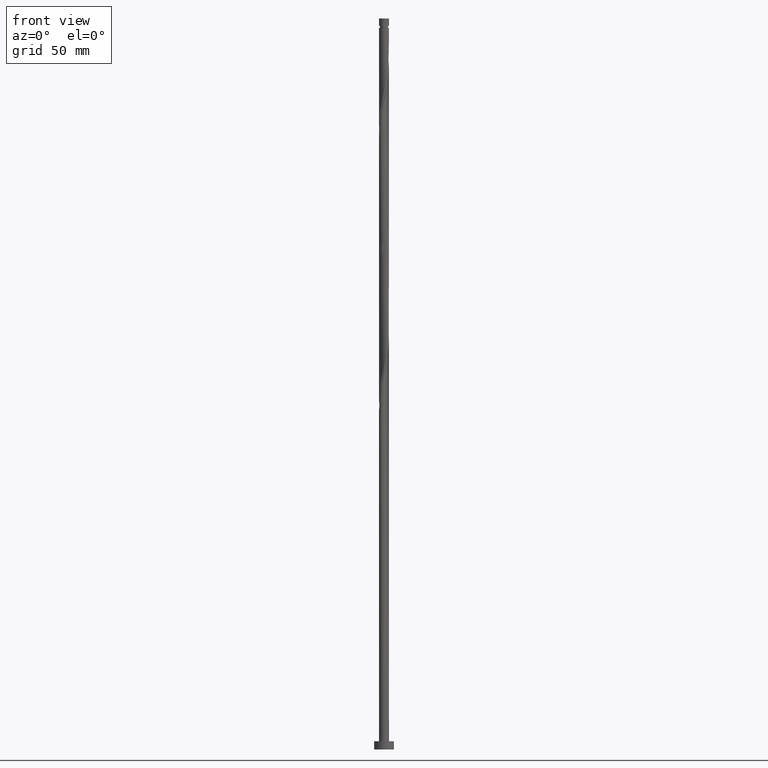
[diagram: clean part render]
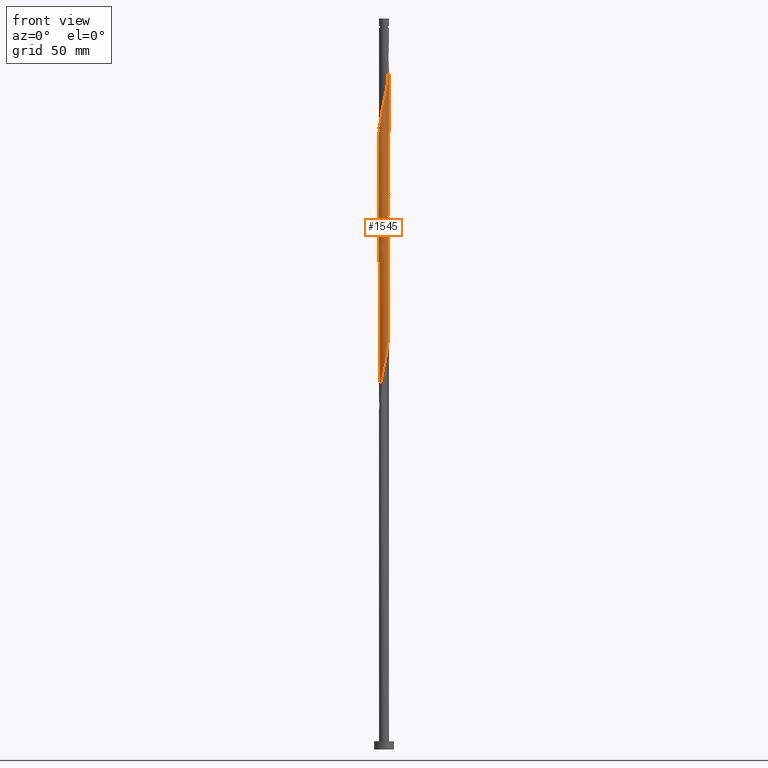
[diagram: same view with one face highlighted and labeled with its STEP entity id]
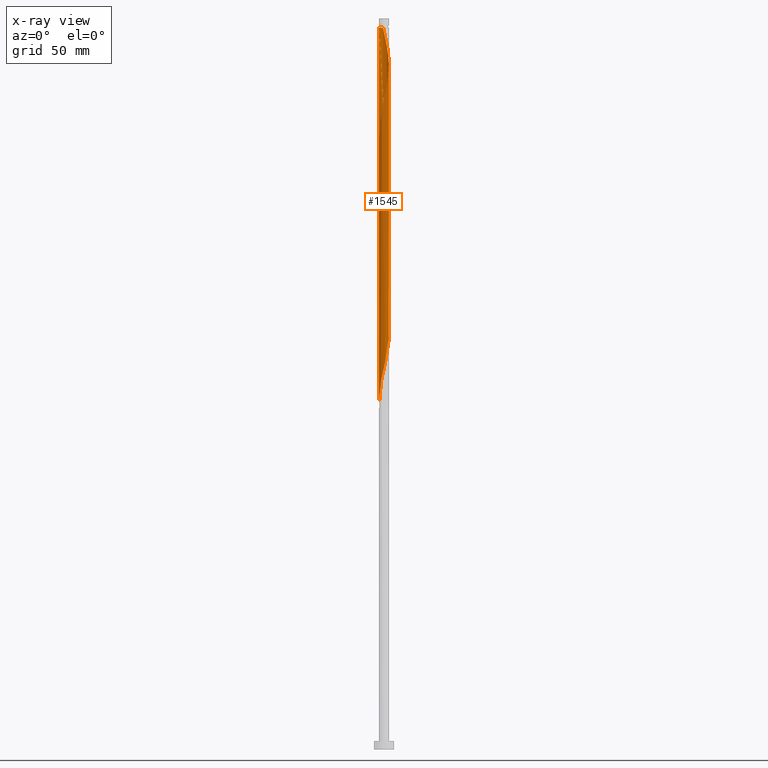
[diagram: x-ray of the same camera — body ghosted, the highlighted face saturated]
A machine part, front view. The second image highlights one B-rep face of the part: STEP entity #1545.
The next image is the same camera in x-ray: the body ghosted, the highlighted face saturated — about 0% of this face is hidden behind the body in this view.
In plain terms, the highlighted cylindrical surface (bore or boss wall) has radius 3 mm, axis along (-0, -0, -1).
Its self-contained STEP definition (entity closure, byte-faithful):
#7 = CARTESIAN_POINT ( 'NONE',  ( 0.01195587277277112247, 2.999976176089777624, 274.2562620546291328 ) ) ;
#10 = VERTEX_POINT ( 'NONE', #113 ) ;
#12 = CARTESIAN_POINT ( 'NONE',  ( -2.501031355072560913, -1.656756518304338899, 219.5687620546290475 ) ) ;
#13 = CARTESIAN_POINT ( 'NONE',  ( -3.000000000000000444, 0.000000000000000000, 444.0000000000000000 ) ) ;
#29 = CARTESIAN_POINT ( 'NONE',  ( 3.001153726777527897, 0.2835159908483695368, 254.7250120546290475 ) ) ;
#33 = CARTESIAN_POINT ( 'NONE',  ( -1.921660071883963372, -2.322612231291373952, 223.4750120546290475 ) ) ;
#38 = CARTESIAN_POINT ( 'NONE',  ( -2.322612231291378837, -1.921660071883965815, 382.3291787212958752 ) ) ;
#49 = CARTESIAN_POINT ( 'NONE',  ( -1.656756518304341341, -2.501031355072564910, 386.2354287212957047 ) ) ;
#51 =( BOUNDED_CURVE ( )  B_SPLINE_CURVE ( 2, ( #276, #1972, #1037, #604, #1212, #1813, #1165, #415, #120, #1620, #263, #867, #1338, #1470, #110, #436, #722, #879, #1329, #1645, #1937, #890, #1223, #1531, #183, #637, #1246, #1903, #836, #671, #84, #1921, #1771, #385, #1750, #818, #1298, #1126, #404, #1009, #1288, #582, #296, #805, #659, #1840, #1065, #501, #772, #1085, #7, #1405, #473, #333, #1537, #646, #1857, #352, #1075, #1847, #1686, #1558, #181, #1528, #789, #29, #489, #1675, #1134, #1439, #1650, #216, #390, #994, #1323, #1503, #1767, #156, #1169, #1303, #248, #1777, #268, #903, #144, #1870, #1417, #1523, #943, #33, #1550, #192, #12, #799, #1690, #1408, #1230, #647, #1376 ),
 .UNSPECIFIED., .F., .T. ) 
 B_SPLINE_CURVE_WITH_KNOTS ( ( 3, 2, 2, 2, 2, 2, 2, 2, 2, 2, 2, 2, 2, 2, 2, 2, 2, 2, 2, 2, 2, 2, 2, 2, 2, 2, 2, 2, 2, 2, 2, 2, 2, 2, 2, 2, 2, 2, 2, 2, 2, 2, 2, 2, 2, 2, 2, 2, 2, 3 ),
 ( 0.5545286902180873723, 0.5546875000000000000, 0.5625000000000000000, 0.5703125000000000000, 0.5781250000000000000, 0.5859375000000000000, 0.5937500000000000000, 0.6015625000000000000, 0.6093750000000000000, 0.6171875000000000000, 0.6250000000000000000, 0.6328125000000000000, 0.6406250000000000000, 0.6484375000000000000, 0.6562500000000000000, 0.6640625000000000000, 0.6718750000000000000, 0.6796875000000000000, 0.6875000000000000000, 0.6953125000000000000, 0.7031250000000000000, 0.7109375000000000000, 0.7187500000000000000, 0.7265625000000000000, 0.7343750000000000000, 0.7421875000000000000, 0.7500000000000000000, 0.7578125000000000000, 0.7656250000000000000, 0.7734375000000000000, 0.7812500000000000000, 0.7890625000000000000, 0.7968750000000000000, 0.8046875000000000000, 0.8125000000000000000, 0.8203125000000000000, 0.8281250000000000000, 0.8359375000000000000, 0.8437500000000000000, 0.8515625000000000000, 0.8593750000000000000, 0.8671875000000000000, 0.8750000000000000000, 0.8828125000000000000, 0.8906250000000000000, 0.8984375000000000000, 0.9062500000000000000, 0.9140625000000000000, 0.9218750000000000000, 0.9295286902180872612 ),
 .UNSPECIFIED. ) 
 CURVE ( )  GEOMETRIC_REPRESENTATION_ITEM ( )  RATIONAL_B_SPLINE_CURVE ( ( 0.9089165573359686556, 0.9090019243628733037, 0.9090909090909650159, 0.9047133878838710119, 0.9090909090909650159, 0.9047133878838710119, 0.9090909090909650159, 0.9047133878838710119, 0.9090909090909650159, 0.9047133878838710119, 0.9090909090909650159, 0.9047133878838710119, 0.9090909090909650159, 0.9047133878838710119, 0.9090909090909650159, 0.9047133878838710119, 0.9090909090909650159, 0.9047133878838710119, 0.9090909090909650159, 0.9047133878838710119, 0.9090909090909650159, 0.9047133878838710119, 0.9090909090909650159, 0.9047133878838710119, 0.9090909090909650159, 0.9047133878838710119, 0.9090909090909650159, 0.9047133878838710119, 0.9090909090909650159, 0.9047133878838710119, 0.9090909090909650159, 0.9047133878838710119, 0.9090909090909650159, 0.9047133878838710119, 0.9090909090909650159, 0.9047133878838710119, 0.9090909090909650159, 0.9047133878838710119, 0.9090909090909650159, 0.9047133878838710119, 0.9090909090909650159, 0.9047133878838710119, 0.9090909090909650159, 0.9047133878838710119, 0.9090909090909650159, 0.9047133878838710119, 0.9090909090909650159, 0.9047133878838710119, 0.9090909090909650159, 0.9047133878838710119, 0.9090909090909650159, 0.9047133878838710119, 0.9090909090909650159, 0.9047133878838710119, 0.9090909090909650159, 0.9047133878838710119, 0.9090909090909650159, 0.9047133878838710119, 0.9090909090909650159, 0.9047133878838710119, 0.9090909090909650159, 0.9047133878838710119, 0.9090909090909650159, 0.9047133878838710119, 0.9090909090909650159, 0.9047133878838710119, 0.9090909090909650159, 0.9047133878838710119, 0.9090909090909650159, 0.9047133878838710119, 0.9090909090909650159, 0.9047133878838710119, 0.9090909090909650159, 0.9047133878838710119, 0.9090909090909650159, 0.9047133878838710119, 0.9090909090909650159, 0.9047133878838710119, 0.9090909090909650159, 0.9047133878838710119, 0.9090909090909650159, 0.9047133878838710119, 0.9090909090909650159, 0.9047133878838710119, 0.9090909090909650159, 0.9047133878838710119, 0.9090909090909650159, 0.9047133878838710119, 0.9090909090909650159, 0.9047133878838710119, 0.9090909090909650159, 0.9047133878838710119, 0.9090909090909650159, 0.9047133878838710119, 0.9090909090909650159, 0.9047133878838710119, 0.9090909090909650159, 0.9048023726119627241, 0.9089165573359684336 ) ) 
 REPRESENTATION_ITEM ( '' )  );
#53 = CARTESIAN_POINT ( 'NONE',  ( 3.000000000000000444, 1.595438430508583589E-15, 336.8089590326259213 ) ) ;
#76 = CARTESIAN_POINT ( 'NONE',  ( -0.3074277363939128538, 2.998798625402032236, 437.0166787212958184 ) ) ;
#84 = CARTESIAN_POINT ( 'NONE',  ( -2.776191901540425722, -1.136995393931460097, 300.2979287212957615 ) ) ;
#85 = CARTESIAN_POINT ( 'NONE',  ( 2.129757576223800797, 2.112849418798539602, 347.1729287212957047 ) ) ;
#86 = CARTESIAN_POINT ( 'NONE',  ( -3.000000000000000444, 0.000000000000000000, 444.0000000000000000 ) ) ;
#110 = CARTESIAN_POINT ( 'NONE',  ( 1.136995393931459875, -2.776191901540426610, 321.1312620546290191 ) ) ;
#113 = CARTESIAN_POINT ( 'NONE',  ( 3.000000000000000444, 1.595438430508583392E-15, 336.8089590326258644 ) ) ;
#120 = CARTESIAN_POINT ( 'NONE',  ( 2.487746701027917506, -1.676638408102568922, 328.9437620546291328 ) ) ;
#128 = CARTESIAN_POINT ( 'NONE',  ( -3.000000000000000444, -1.302817129585864256E-15, 211.8089590326259213 ) ) ;
#129 = CARTESIAN_POINT ( 'NONE',  ( 2.664207629581488046, -1.410426430302975875, 408.3708453879624471 ) ) ;
#139 = CARTESIAN_POINT ( 'NONE',  ( 3.000000000000000444, 3.673940397442060361E-16, 444.0000000000000000 ) ) ;
#144 = CARTESIAN_POINT ( 'NONE',  ( -0.5969924622639758427, -2.939999999999999503, 229.9854287212957331 ) ) ;
#147 = EDGE_CURVE ( 'NONE', #753, #1179, #318, .T. ) ;
#148 = ORIENTED_EDGE ( 'NONE', *, *, #1356, .F. ) ;
#156 = CARTESIAN_POINT ( 'NONE',  ( 1.410426430302971657, -2.664207629581484937, 239.1000120546291328 ) ) ;
#178 = AXIS2_PLACEMENT_3D ( 'NONE', #1744, #1724, #1914 ) ;
#181 = CARTESIAN_POINT ( 'NONE',  ( 2.776191901540426166, 1.136995393931459652, 258.6312620546290759 ) ) ;
#183 = CARTESIAN_POINT ( 'NONE',  ( -1.676638408102567812, -2.487746701027919283, 308.1104287212958184 ) ) ;
#188 = ORIENTED_EDGE ( 'NONE', *, *, #147, .T. ) ;
#192 = CARTESIAN_POINT ( 'NONE',  ( -2.337855080563638221, -1.903086606305705697, 220.8708453879624471 ) ) ;
#211 = CARTESIAN_POINT ( 'NONE',  ( 0.5969924622639763978, 2.939999999999999503, 354.9854287212957615 ) ) ;
#216 = CARTESIAN_POINT ( 'NONE',  ( 2.652881170764462393, -1.431616744321172474, 246.9125120546290759 ) ) ;
#225 = CARTESIAN_POINT ( 'NONE',  ( -2.940000000000004388, -0.5969924622639756207, 375.8187620546290759 ) ) ;
#229 = CARTESIAN_POINT ( 'NONE',  ( 2.322612231291379281, 1.921660071883965593, 423.9958453879623903 ) ) ;
#231 = CARTESIAN_POINT ( 'NONE',  ( 0.01195587277277112247, 2.999976176089777624, 357.5895953879624471 ) ) ;
#240 = CARTESIAN_POINT ( 'NONE',  ( 3.001153726777532782, -0.2835159908483714797, 413.5791787212958752 ) ) ;
#243 = CARTESIAN_POINT ( 'NONE',  ( -2.939999999999999503, 0.5969924622639757317, 375.8187620546290191 ) ) ;
#248 = CARTESIAN_POINT ( 'NONE',  ( 0.5735401742041600359, -2.944664950138448756, 235.1937620546290475 ) ) ;
#259 = CARTESIAN_POINT ( 'NONE',  ( 1.410426430302975875, 2.664207629581487602, 429.2041787212957615 ) ) ;
#263 = CARTESIAN_POINT ( 'NONE',  ( 2.112849418798539602, -2.129757576223800797, 326.3395953879625040 ) ) ;
#268 = CARTESIAN_POINT ( 'NONE',  ( -0.01195587277277070440, -2.999976176089778068, 232.5895953879623903 ) ) ;
#276 = CARTESIAN_POINT ( 'NONE',  ( 3.000000000000000444, 1.595438430508583589E-15, 336.8089590326259213 ) ) ;
#296 = CARTESIAN_POINT ( 'NONE',  ( -2.112849418798539602, 2.129757576223800797, 284.6729287212957615 ) ) ;
#302 = ORIENTED_EDGE ( 'NONE', *, *, #1332, .F. ) ;
#318 = LINE ( 'NONE', #86, #461 ) ;
#330 = CARTESIAN_POINT ( 'NONE',  ( -0.5969924622640550016, 2.940000000000798863, 438.3187620546291896 ) ) ;
#333 = CARTESIAN_POINT ( 'NONE',  ( 0.8865571881340382765, 2.881201374597972542, 270.3500120546290759 ) ) ;
#338 = EDGE_CURVE ( 'NONE', #10, #1179, #51, .T. ) ;
#352 = CARTESIAN_POINT ( 'NONE',  ( 1.921660071883963594, 2.322612231291373952, 265.1416787212958184 ) ) ;
#355 = CARTESIAN_POINT ( 'NONE',  ( 2.776191901540426166, 1.136995393931459652, 341.9645953879625040 ) ) ;
#358 = DIRECTION ( 'NONE',  ( -1.000000000000000000, 0.000000000000000000, 0.000000000000000000 ) ) ;
#376 = CARTESIAN_POINT ( 'NONE',  ( 2.664207629581484049, 1.410426430302972101, 343.2666787212958184 ) ) ;
#385 = CARTESIAN_POINT ( 'NONE',  ( -3.001153726777528341, -0.2835159908483698699, 296.3916787212957615 ) ) ;
#390 = CARTESIAN_POINT ( 'NONE',  ( 2.487746701027917506, -1.676638408102568922, 245.6104287212957331 ) ) ;
#399 = DIRECTION ( 'NONE',  ( -0.000000000000000000, -0.000000000000000000, -1.000000000000000000 ) ) ;
#400 = EDGE_CURVE ( 'NONE', #1711, #815, #1663, .T. ) ;
#404 = CARTESIAN_POINT ( 'NONE',  ( -2.767041272681216579, 1.159086966227605764, 289.8812620546290759 ) ) ;
#415 = CARTESIAN_POINT ( 'NONE',  ( 2.652881170764462393, -1.431616744321172474, 330.2458453879625608 ) ) ;
#431 = CARTESIAN_POINT ( 'NONE',  ( 2.487746701027922391, 1.676638408102570477, 422.6937620546290191 ) ) ;
#436 = CARTESIAN_POINT ( 'NONE',  ( 0.8635643575599500910, -2.888176173499368282, 319.8291787212958752 ) ) ;
#444 = CARTESIAN_POINT ( 'NONE',  ( 2.112849418798544932, 2.129757576223801685, 425.2979287212957615 ) ) ;
#461 = VECTOR ( 'NONE', #553, 1000.000000000000000 ) ;
#473 = CARTESIAN_POINT ( 'NONE',  ( 0.5969924622639763978, 2.939999999999999503, 271.6520953879624471 ) ) ;
#489 = CARTESIAN_POINT ( 'NONE',  ( 2.999976176089777624, -0.01195587277277091430, 253.4229287212957331 ) ) ;
#501 = CARTESIAN_POINT ( 'NONE',  ( -0.8635643575599500910, 2.888176173499368282, 278.1625120546290759 ) ) ;
#513 = CARTESIAN_POINT ( 'NONE',  ( 2.337855080563638666, 1.903086606305703699, 345.8708453879625040 ) ) ;
#518 = EDGE_CURVE ( 'NONE', #753, #815, #1818, .T. ) ;
#519 = ORIENTED_EDGE ( 'NONE', *, *, #1579, .F. ) ;
#522 = CARTESIAN_POINT ( 'NONE',  ( -1.903086606305705031, 2.337855080563638221, 366.7041787212957615 ) ) ;
#546 = CARTESIAN_POINT ( 'NONE',  ( -3.000000000000004441, -2.013868252528636088E-15, 373.1618984099654313 ) ) ;
#550 = CARTESIAN_POINT ( 'NONE',  ( 2.501031355072564910, -1.656756518304341785, 407.0687620546290759 ) ) ;
#552 = CARTESIAN_POINT ( 'NONE',  ( -0.2835159908483703139, 3.001153726777528341, 358.8916787212957047 ) ) ;
#553 = DIRECTION ( 'NONE',  ( -0.000000000000000000, -0.000000000000000000, -1.000000000000000000 ) ) ;
#582 = CARTESIAN_POINT ( 'NONE',  ( -2.322612231291373952, 1.921660071883963372, 285.9750120546291328 ) ) ;
#593 = CARTESIAN_POINT ( 'NONE',  ( -3.000000000000000444, -1.302817129585864256E-15, 378.4756256992924932 ) ) ;
#594 = VECTOR ( 'NONE', #916, 1000.000000000000000 ) ;
#604 = CARTESIAN_POINT ( 'NONE',  ( 2.998798625402027351, -0.3074277363939140750, 335.4541787212957615 ) ) ;
#612 = ORIENTED_EDGE ( 'NONE', *, *, #518, .F. ) ;
#618 = CARTESIAN_POINT ( 'NONE',  ( -0.5969924622640550016, 2.940000000000798863, 438.3187620546291896 ) ) ;
#637 = CARTESIAN_POINT ( 'NONE',  ( -1.921660071883963372, -2.322612231291373952, 306.8083453879625608 ) ) ;
#646 = CARTESIAN_POINT ( 'NONE',  ( 1.431616744321172696, 2.652881170764462393, 267.7458453879625040 ) ) ;
#647 = CARTESIAN_POINT ( 'NONE',  ( -3.000000000000002665, -0.2894394447869404474, 213.0849391380419320 ) ) ;
#649 = CARTESIAN_POINT ( 'NONE',  ( -2.112849418798544487, -2.129757576223802129, 383.6312620546290191 ) ) ;
#659 = CARTESIAN_POINT ( 'NONE',  ( -1.656756518304338899, 2.501031355072560913, 282.0687620546291328 ) ) ;
#671 = CARTESIAN_POINT ( 'NONE',  ( -2.664207629581484937, -1.410426430302971657, 301.6000120546290191 ) ) ;
#692 = CARTESIAN_POINT ( 'NONE',  ( 2.940000000000004388, 0.5969924622639752876, 417.4854287212956478 ) ) ;
#701 = FACE_OUTER_BOUND ( 'NONE', #1639, .T. ) ;
#713 = VERTEX_POINT ( 'NONE', #593 ) ;
#716 = CARTESIAN_POINT ( 'NONE',  ( 0.2835159908483717017, 3.001153726777532782, 434.4125120546290759 ) ) ;
#722 = CARTESIAN_POINT ( 'NONE',  ( 0.5735401742041600359, -2.944664950138448756, 318.5270953879624471 ) ) ;
#739 = ORIENTED_EDGE ( 'NONE', *, *, #400, .T. ) ;
#753 = VERTEX_POINT ( 'NONE', #977 ) ;
#772 = CARTESIAN_POINT ( 'NONE',  ( -0.5735401742041602580, 2.944664950138447868, 276.8604287212957615 ) ) ;
#789 = CARTESIAN_POINT ( 'NONE',  ( 2.944664950138447423, 0.5735401742041612572, 256.0270953879625040 ) ) ;
#799 = CARTESIAN_POINT ( 'NONE',  ( -2.664207629581484937, -1.410426430302971657, 218.2666787212957615 ) ) ;
#805 = CARTESIAN_POINT ( 'NONE',  ( -1.903086606305705031, 2.337855080563638221, 283.3708453879625608 ) ) ;
#809 = CARTESIAN_POINT ( 'NONE',  ( 2.888176173499367394, 0.8635643575599499799, 340.6625120546290759 ) ) ;
#815 = VERTEX_POINT ( 'NONE', #330 ) ;
#818 = CARTESIAN_POINT ( 'NONE',  ( -2.998798625402028240, 0.3074277363939125207, 293.7875120546290191 ) ) ;
#819 = CARTESIAN_POINT ( 'NONE',  ( 1.159086966227606430, 2.767041272681216579, 352.3812620546290759 ) ) ;
#828 = CARTESIAN_POINT ( 'NONE',  ( -0.8635643575599500910, 2.888176173499368282, 361.4958453879624471 ) ) ;
#836 = CARTESIAN_POINT ( 'NONE',  ( -2.501031355072560913, -1.656756518304338899, 302.9020953879625040 ) ) ;
#837 = CARTESIAN_POINT ( 'NONE',  ( 0.3074277363939126317, 2.998798625402028240, 356.2875120546291896 ) ) ;
#849 = CARTESIAN_POINT ( 'NONE',  ( -2.767041272681216579, 1.159086966227605764, 373.2145953879624471 ) ) ;
#867 = CARTESIAN_POINT ( 'NONE',  ( 1.903086606305703921, -2.337855080563638666, 325.0375120546290759 ) ) ;
#870 = ORIENTED_EDGE ( 'NONE', *, *, #338, .F. ) ;
#879 = CARTESIAN_POINT ( 'NONE',  ( 0.2835159908483697033, -3.001153726777528341, 317.2250120546291328 ) ) ;
#886 = CARTESIAN_POINT ( 'NONE',  ( 2.129757576223802129, -2.112849418798544487, 404.4645953879623335 ) ) ;
#889 = CARTESIAN_POINT ( 'NONE',  ( -2.487746701027922391, -1.676638408102569811, 381.0270953879623335 ) ) ;
#890 = CARTESIAN_POINT ( 'NONE',  ( -0.8865571881340389426, -2.881201374597972098, 312.0166787212958184 ) ) ;
#898 = DIRECTION ( 'NONE',  ( -0.000000000000000000, -0.000000000000000000, -1.000000000000000000 ) ) ;
#900 = CARTESIAN_POINT ( 'NONE',  ( 1.159086966227606430, -2.767041272681221020, 399.2562620546290191 ) ) ;
#903 = CARTESIAN_POINT ( 'NONE',  ( -0.3074277363939127428, -2.998798625402028240, 231.2875120546290759 ) ) ;
#916 = DIRECTION ( 'NONE',  ( -0.000000000000000000, -0.000000000000000000, -1.000000000000000000 ) ) ;
#943 = CARTESIAN_POINT ( 'NONE',  ( -1.676638408102567812, -2.487746701027919283, 224.7770953879623903 ) ) ;
#960 = CARTESIAN_POINT ( 'NONE',  ( 2.944664950138447423, 0.5735401742041612572, 339.3604287212958184 ) ) ;
#977 = CARTESIAN_POINT ( 'NONE',  ( -3.000000000000004441, -2.013868252528636088E-15, 373.1618984099654313 ) ) ;
#979 = CARTESIAN_POINT ( 'NONE',  ( -3.000000000000000444, -1.302817129585864256E-15, 378.4756256992924932 ) ) ;
#988 = CARTESIAN_POINT ( 'NONE',  ( -2.881201374597972098, 0.8865571881340387206, 374.5166787212958752 ) ) ;
#994 = CARTESIAN_POINT ( 'NONE',  ( 2.322612231291373952, -1.921660071883963372, 244.3083453879624187 ) ) ;
#998 = CARTESIAN_POINT ( 'NONE',  ( 2.944664950138450976, -0.5735401742041631445, 412.2770953879623903 ) ) ;
#1000 = CARTESIAN_POINT ( 'NONE',  ( -2.112849418798539602, 2.129757576223800797, 368.0062620546291328 ) ) ;
#1006 = CARTESIAN_POINT ( 'NONE',  ( 0.8635643575599528665, 2.888176173499372723, 431.8083453879623335 ) ) ;
#1009 = CARTESIAN_POINT ( 'NONE',  ( -2.652881170764462393, 1.431616744321172252, 288.5791787212957615 ) ) ;
#1017 = CARTESIAN_POINT ( 'NONE',  ( -2.999999999999959144, 0.000000000000000000, 438.3187620546290759 ) ) ;
#1037 = CARTESIAN_POINT ( 'NONE',  ( 2.999976176089777624, -0.01195587277277091430, 336.7562620546290759 ) ) ;
#1045 = CARTESIAN_POINT ( 'NONE',  ( 0.5969924622639755096, -2.940000000000004388, 396.6520953879624471 ) ) ;
#1065 = CARTESIAN_POINT ( 'NONE',  ( -1.136995393931461207, 2.776191901540425722, 279.4645953879625040 ) ) ;
#1075 = CARTESIAN_POINT ( 'NONE',  ( 2.129757576223800797, 2.112849418798539602, 263.8395953879624471 ) ) ;
#1077 = CARTESIAN_POINT ( 'NONE',  ( -1.136995393931462983, -2.776191901540429718, 388.8395953879623903 ) ) ;
#1085 = CARTESIAN_POINT ( 'NONE',  ( -0.2835159908483703139, 3.001153726777528341, 275.5583453879625040 ) ) ;
#1086 = CARTESIAN_POINT ( 'NONE',  ( 0.000000000000000000, 0.000000000000000000, 438.3187620546290759 ) ) ;
#1119 = CYLINDRICAL_SURFACE ( 'NONE', #178, 3.000000000000000444 ) ;
#1126 = CARTESIAN_POINT ( 'NONE',  ( -2.881201374597972098, 0.8865571881340387206, 291.1833453879625040 ) ) ;
#1127 = CARTESIAN_POINT ( 'NONE',  ( -1.410426430302972101, 2.664207629581484937, 364.1000120546291896 ) ) ;
#1134 = CARTESIAN_POINT ( 'NONE',  ( 2.939999999999999503, -0.5969924622639760647, 250.8187620546290475 ) ) ;
#1141 = CARTESIAN_POINT ( 'NONE',  ( -2.881201374597976095, -0.8865571881340394977, 377.1208453879623903 ) ) ;
#1153 = CARTESIAN_POINT ( 'NONE',  ( 1.656756518304341785, 2.501031355072564022, 427.9020953879623903 ) ) ;
#1154 = CARTESIAN_POINT ( 'NONE',  ( 2.776191901540429274, -1.136995393931462983, 409.6729287212957615 ) ) ;
#1162 = CARTESIAN_POINT ( 'NONE',  ( 2.881201374597976539, 0.8865571881340380545, 418.7875120546290759 ) ) ;
#1165 = CARTESIAN_POINT ( 'NONE',  ( 2.767041272681216579, -1.159086966227606208, 331.5479287212957615 ) ) ;
#1169 = CARTESIAN_POINT ( 'NONE',  ( 1.136995393931459875, -2.776191901540426610, 237.7979287212957615 ) ) ;
#1179 = VERTEX_POINT ( 'NONE', #128 ) ;
#1186 = CARTESIAN_POINT ( 'NONE',  ( 2.767041272681221464, 1.159086966227606430, 420.0895953879623335 ) ) ;
#1208 = CARTESIAN_POINT ( 'NONE',  ( 1.431616744321172918, -2.652881170764466834, 400.5583453879623903 ) ) ;
#1212 = CARTESIAN_POINT ( 'NONE',  ( 2.939999999999999503, -0.5969924622639760647, 334.1520953879625040 ) ) ;
#1223 = CARTESIAN_POINT ( 'NONE',  ( -1.159086966227606208, -2.767041272681216579, 310.7145953879624471 ) ) ;
#1229 = VECTOR ( 'NONE', #898, 1000.000000000000000 ) ;
#1230 = CARTESIAN_POINT ( 'NONE',  ( -2.944664950138447868, -0.5735401742041601469, 214.3604287212957615 ) ) ;
#1241 = LINE ( 'NONE', #13, #594 ) ;
#1246 = CARTESIAN_POINT ( 'NONE',  ( -2.129757576223800797, -2.112849418798540491, 305.5062620546290759 ) ) ;
#1261 = CARTESIAN_POINT ( 'NONE',  ( -1.903086606305709028, -2.337855080563639998, 384.9333453879623903 ) ) ;
#1267 =( BOUNDED_CURVE ( )  B_SPLINE_CURVE ( 2, ( #979, #1418, #1580, #1600, #243, #988, #849, #1881, #1591, #1450, #1000, #522, #1904, #1127, #1893, #828, #1570, #552, #231, #837, #211, #1272, #819, #1426, #1442, #1735, #85, #513, #1715, #376, #355, #809, #960, #1560, #53 ),
 .UNSPECIFIED., .F., .T. ) 
 B_SPLINE_CURVE_WITH_KNOTS ( ( 3, 2, 2, 2, 2, 2, 2, 2, 2, 2, 2, 2, 2, 2, 2, 2, 2, 3 ),
 ( 0.4295286902180874278, 0.4296875000000000000, 0.4375000000000000000, 0.4453125000000000000, 0.4531250000000000000, 0.4609375000000000000, 0.4687500000000000000, 0.4765625000000000000, 0.4843750000000000000, 0.4921875000000000000, 0.5000000000000000000, 0.5078125000000000000, 0.5156250000000000000, 0.5234375000000000000, 0.5312500000000000000, 0.5390625000000000000, 0.5468750000000000000, 0.5545286902180873723 ),
 .UNSPECIFIED. ) 
 CURVE ( )  GEOMETRIC_REPRESENTATION_ITEM ( )  RATIONAL_B_SPLINE_CURVE ( ( 0.9089165573359686556, 0.9090019243628733037, 0.9090909090909650159, 0.9047133878838710119, 0.9090909090909650159, 0.9047133878838710119, 0.9090909090909650159, 0.9047133878838710119, 0.9090909090909650159, 0.9047133878838710119, 0.9090909090909650159, 0.9047133878838710119, 0.9090909090909650159, 0.9047133878838710119, 0.9090909090909650159, 0.9047133878838710119, 0.9090909090909650159, 0.9047133878838710119, 0.9090909090909650159, 0.9047133878838710119, 0.9090909090909650159, 0.9047133878838710119, 0.9090909090909650159, 0.9047133878838710119, 0.9090909090909650159, 0.9047133878838710119, 0.9090909090909650159, 0.9047133878838710119, 0.9090909090909650159, 0.9047133878838710119, 0.9090909090909650159, 0.9047133878838710119, 0.9090909090909650159, 0.9048023726119627241, 0.9089165573359686556 ) ) 
 REPRESENTATION_ITEM ( '' )  );
#1272 = CARTESIAN_POINT ( 'NONE',  ( 0.8865571881340382765, 2.881201374597972542, 353.6833453879625040 ) ) ;
#1283 = CARTESIAN_POINT ( 'NONE',  ( -2.998798625402032236, -0.3074277363939120211, 374.5166787212957615 ) ) ;
#1288 = CARTESIAN_POINT ( 'NONE',  ( -2.487746701027919283, 1.676638408102567590, 287.2770953879625040 ) ) ;
#1298 = CARTESIAN_POINT ( 'NONE',  ( -2.939999999999999503, 0.5969924622639757317, 292.4854287212956478 ) ) ;
#1303 = CARTESIAN_POINT ( 'NONE',  ( 0.8635643575599500910, -2.888176173499368282, 236.4958453879624471 ) ) ;
#1316 = CARTESIAN_POINT ( 'NONE',  ( 2.998798625402032236, 0.3074277363939130758, 416.1833453879624471 ) ) ;
#1323 = CARTESIAN_POINT ( 'NONE',  ( 2.112849418798539602, -2.129757576223800797, 243.0062620546290759 ) ) ;
#1325 = CARTESIAN_POINT ( 'NONE',  ( -0.01195587277276921601, 2.999976176089782065, 435.7145953879623335 ) ) ;
#1329 = CARTESIAN_POINT ( 'NONE',  ( -0.01195587277277070440, -2.999976176089778068, 315.9229287212956478 ) ) ;
#1332 = EDGE_CURVE ( 'NONE', #1512, #10, #1347, .T. ) ;
#1338 = CARTESIAN_POINT ( 'NONE',  ( 1.656756518304338899, -2.501031355072561357, 323.7354287212957615 ) ) ;
#1347 = LINE ( 'NONE', #139, #1229 ) ;
#1349 = CARTESIAN_POINT ( 'NONE',  ( 2.888176173499372723, -0.8635643575599525334, 410.9750120546292464 ) ) ;
#1351 = AXIS2_PLACEMENT_3D ( 'NONE', #1086, #399, #358 ) ;
#1356 = EDGE_CURVE ( 'NONE', #1711, #713, #1241, .T. ) ;
#1366 = ORIENTED_EDGE ( 'NONE', *, *, #1332, .T. ) ;
#1376 = CARTESIAN_POINT ( 'NONE',  ( -3.000000000000000444, -1.302817129585864256E-15, 211.8089590326259213 ) ) ;
#1393 = CARTESIAN_POINT ( 'NONE',  ( -0.5735401742041619233, -2.944664950138451420, 391.4437620546290759 ) ) ;
#1405 = CARTESIAN_POINT ( 'NONE',  ( 0.3074277363939126317, 2.998798625402028240, 272.9541787212957615 ) ) ;
#1408 = CARTESIAN_POINT ( 'NONE',  ( -2.888176173499368282, -0.8635643575599504240, 215.6625120546291043 ) ) ;
#1417 = CARTESIAN_POINT ( 'NONE',  ( -1.159086966227606208, -2.767041272681216579, 227.3812620546290475 ) ) ;
#1418 = CARTESIAN_POINT ( 'NONE',  ( -3.000000000000000444, 0.005977960122792961607, 378.4492721447752501 ) ) ;
#1426 = CARTESIAN_POINT ( 'NONE',  ( 1.431616744321172696, 2.652881170764462393, 351.0791787212958752 ) ) ;
#1431 = CARTESIAN_POINT ( 'NONE',  ( 1.903086606305707473, 2.337855080563640886, 426.6000120546291328 ) ) ;
#1439 = CARTESIAN_POINT ( 'NONE',  ( 2.881201374597972542, -0.8865571881340380545, 249.5166787212958184 ) ) ;
#1442 = CARTESIAN_POINT ( 'NONE',  ( 1.676638408102569811, 2.487746701027916618, 349.7770953879623335 ) ) ;
#1450 = CARTESIAN_POINT ( 'NONE',  ( -2.322612231291373952, 1.921660071883963372, 369.3083453879625040 ) ) ;
#1458 = CARTESIAN_POINT ( 'NONE',  ( 0.5735401742041633666, 2.944664950138451420, 433.1104287212958184 ) ) ;
#1467 = CARTESIAN_POINT ( 'NONE',  ( 1.676638408102569588, -2.487746701027923280, 401.8604287212957047 ) ) ;
#1470 = CARTESIAN_POINT ( 'NONE',  ( 1.410426430302971657, -2.664207629581484937, 322.4333453879625040 ) ) ;
#1490 = CARTESIAN_POINT ( 'NONE',  ( 2.337855080563639998, -1.903086606305709028, 405.7666787212957615 ) ) ;
#1503 = CARTESIAN_POINT ( 'NONE',  ( 1.903086606305703921, -2.337855080563638666, 241.7041787212957615 ) ) ;
#1512 = VERTEX_POINT ( 'NONE', #1871 ) ;
#1523 = CARTESIAN_POINT ( 'NONE',  ( -1.431616744321172252, -2.652881170764462393, 226.0791787212957615 ) ) ;
#1528 = CARTESIAN_POINT ( 'NONE',  ( 2.888176173499367394, 0.8635643575599499799, 257.3291787212958184 ) ) ;
#1531 = CARTESIAN_POINT ( 'NONE',  ( -1.431616744321172252, -2.652881170764462393, 309.4125120546291328 ) ) ;
#1537 = CARTESIAN_POINT ( 'NONE',  ( 1.159086966227606430, 2.767041272681216579, 269.0479287212957615 ) ) ;
#1545 = ADVANCED_FACE ( 'NONE', ( #701 ), #1119, .T. ) ;
#1550 = CARTESIAN_POINT ( 'NONE',  ( -2.129757576223800797, -2.112849418798540491, 222.1729287212957331 ) ) ;
#1558 = CARTESIAN_POINT ( 'NONE',  ( 2.664207629581484049, 1.410426430302972101, 259.9333453879625040 ) ) ;
#1560 = CARTESIAN_POINT ( 'NONE',  ( 3.000000000000002665, 0.2894394447869358955, 338.0849391380418751 ) ) ;
#1570 = CARTESIAN_POINT ( 'NONE',  ( -0.5735401742041602580, 2.944664950138447868, 360.1937620546290759 ) ) ;
#1579 = EDGE_CURVE ( 'NONE', #713, #10, #1267, .T. ) ;
#1580 = CARTESIAN_POINT ( 'NONE',  ( -2.999976176089777624, 0.01195587277277123349, 378.4229287212957615 ) ) ;
#1590 = CARTESIAN_POINT ( 'NONE',  ( 0.3074277363939118546, -2.998798625402032236, 395.3500120546292464 ) ) ;
#1591 = CARTESIAN_POINT ( 'NONE',  ( -2.487746701027919283, 1.676638408102567590, 370.6104287212958752 ) ) ;
#1600 = CARTESIAN_POINT ( 'NONE',  ( -2.998798625402028240, 0.3074277363939125207, 377.1208453879624471 ) ) ;
#1620 = CARTESIAN_POINT ( 'NONE',  ( 2.322612231291373952, -1.921660071883963372, 327.6416787212959321 ) ) ;
#1623 = CARTESIAN_POINT ( 'NONE',  ( -2.999976176089781621, -0.01195587277277038521, 373.2145953879623903 ) ) ;
#1639 = EDGE_LOOP ( 'NONE', ( #148, #739, #612, #188, #870, #302, #1366, #519 ) ) ;
#1642 = CARTESIAN_POINT ( 'NONE',  ( 1.921660071883965815, -2.322612231291378837, 403.1625120546290759 ) ) ;
#1645 = CARTESIAN_POINT ( 'NONE',  ( -0.3074277363939127428, -2.998798625402028240, 314.6208453879623903 ) ) ;
#1650 = CARTESIAN_POINT ( 'NONE',  ( 2.767041272681216579, -1.159086966227606208, 248.2145953879623619 ) ) ;
#1654 = CARTESIAN_POINT ( 'NONE',  ( 0.8865571881340393867, -2.881201374597976095, 397.9541787212958184 ) ) ;
#1663 = CIRCLE ( 'NONE', #1351, 2.999999999999959144 ) ;
#1675 = CARTESIAN_POINT ( 'NONE',  ( 2.998798625402027351, -0.3074277363939140750, 252.1208453879624187 ) ) ;
#1681 = CARTESIAN_POINT ( 'NONE',  ( -2.652881170764466834, -1.431616744321172918, 379.7250120546290759 ) ) ;
#1686 = CARTESIAN_POINT ( 'NONE',  ( 2.501031355072561357, 1.656756518304338455, 261.2354287212958184 ) ) ;
#1688 = CARTESIAN_POINT ( 'NONE',  ( -0.8635643575599522004, -2.888176173499372723, 390.1416787212957615 ) ) ;
#1690 = CARTESIAN_POINT ( 'NONE',  ( -2.776191901540425722, -1.136995393931460097, 216.9645953879623903 ) ) ;
#1711 = VERTEX_POINT ( 'NONE', #1017 ) ;
#1713 = CARTESIAN_POINT ( 'NONE',  ( 0.01195587277276963928, -2.999976176089782065, 394.0479287212957615 ) ) ;
#1715 = CARTESIAN_POINT ( 'NONE',  ( 2.501031355072561357, 1.656756518304338455, 344.5687620546290191 ) ) ;
#1724 = DIRECTION ( 'NONE',  ( -0.000000000000000000, -0.000000000000000000, -1.000000000000000000 ) ) ;
#1735 = CARTESIAN_POINT ( 'NONE',  ( 1.921660071883963594, 2.322612231291373952, 348.4750120546291328 ) ) ;
#1741 = CARTESIAN_POINT ( 'NONE',  ( 1.136995393931462983, 2.776191901540429274, 430.5062620546290759 ) ) ;
#1744 = CARTESIAN_POINT ( 'NONE',  ( 0.000000000000000000, 0.000000000000000000, 444.0000000000000000 ) ) ;
#1750 = CARTESIAN_POINT ( 'NONE',  ( -2.999976176089777624, 0.01195587277277123349, 295.0895953879624471 ) ) ;
#1755 = CARTESIAN_POINT ( 'NONE',  ( -2.767041272681221464, -1.159086966227606430, 378.4229287212958752 ) ) ;
#1767 = CARTESIAN_POINT ( 'NONE',  ( 1.656756518304338899, -2.501031355072561357, 240.4020953879623903 ) ) ;
#1769 = CARTESIAN_POINT ( 'NONE',  ( 2.652881170764466834, 1.431616744321172696, 421.3916787212958752 ) ) ;
#1771 = CARTESIAN_POINT ( 'NONE',  ( -2.944664950138447868, -0.5735401742041601469, 297.6937620546290759 ) ) ;
#1777 = CARTESIAN_POINT ( 'NONE',  ( 0.2835159908483697033, -3.001153726777528341, 233.8916787212957615 ) ) ;
#1813 = CARTESIAN_POINT ( 'NONE',  ( 2.881201374597972542, -0.8865571881340380545, 332.8500120546291328 ) ) ;
#1818 =( BOUNDED_CURVE ( )  B_SPLINE_CURVE ( 2, ( #546, #1898, #1623, #1283, #225, #1141, #1755, #1681, #889, #38, #649, #1261, #49, #1824, #1077, #1688, #1393, #1859, #1713, #1590, #1045, #1654, #900, #1208, #1467, #1642, #886, #1490, #550, #129, #1154, #1349, #998, #240, #1947, #1316, #692, #1162, #1186, #1769, #431, #229, #444, #1431, #1153, #259, #1741, #1006, #1458, #716, #1325, #76, #618 ),
 .UNSPECIFIED., .F., .T. ) 
 B_SPLINE_CURVE_WITH_KNOTS ( ( 3, 2, 2, 2, 2, 2, 2, 2, 2, 2, 2, 2, 2, 2, 2, 2, 2, 2, 2, 2, 2, 2, 2, 2, 2, 2, 3 ),
 ( 0.5545286902180868172, 0.5546875000000000000, 0.5625000000000000000, 0.5703125000000000000, 0.5781250000000000000, 0.5859375000000000000, 0.5937500000000000000, 0.6015625000000000000, 0.6093750000000000000, 0.6171875000000000000, 0.6250000000000000000, 0.6328125000000000000, 0.6406250000000000000, 0.6484375000000000000, 0.6562500000000000000, 0.6640625000000000000, 0.6718750000000000000, 0.6796875000000000000, 0.6875000000000000000, 0.6953125000000000000, 0.7031250000000000000, 0.7109375000000000000, 0.7187500000000000000, 0.7265625000000000000, 0.7343750000000000000, 0.7421875000000000000, 0.7500000000000000000 ),
 .UNSPECIFIED. ) 
 CURVE ( )  GEOMETRIC_REPRESENTATION_ITEM ( )  RATIONAL_B_SPLINE_CURVE ( ( 0.9089165573359740957, 0.9090019243628790768, 0.9090909090909711221, 0.9047133878838770071, 0.9090909090909711221, 0.9047133878838770071, 0.9090909090909711221, 0.9047133878838770071, 0.9090909090909711221, 0.9047133878838770071, 0.9090909090909711221, 0.9047133878838770071, 0.9090909090909711221, 0.9047133878838770071, 0.9090909090909711221, 0.9047133878838770071, 0.9090909090909711221, 0.9047133878838770071, 0.9090909090909711221, 0.9047133878838770071, 0.9090909090909711221, 0.9047133878838770071, 0.9090909090909711221, 0.9047133878838770071, 0.9090909090909711221, 0.9047133878838770071, 0.9090909090909711221, 0.9047133878838770071, 0.9090909090909711221, 0.9047133878838770071, 0.9090909090909711221, 0.9047133878838770071, 0.9090909090909711221, 0.9047133878838770071, 0.9090909090909711221, 0.9047133878838770071, 0.9090909090909711221, 0.9047133878838770071, 0.9090909090909711221, 0.9047133878838770071, 0.9090909090909711221, 0.9047133878838770071, 0.9090909090909711221, 0.9047133878838770071, 0.9090909090909711221, 0.9047133878838770071, 0.9090909090909711221, 0.9047133878838770071, 0.9090909090909711221, 0.9047133878838770071, 0.9090909090909711221, 0.9047133878838770071, 0.9090909090909711221 ) ) 
 REPRESENTATION_ITEM ( '' )  );
#1824 = CARTESIAN_POINT ( 'NONE',  ( -1.410426430302974765, -2.664207629581488046, 387.5375120546291328 ) ) ;
#1840 = CARTESIAN_POINT ( 'NONE',  ( -1.410426430302972101, 2.664207629581484937, 280.7666787212957615 ) ) ;
#1847 = CARTESIAN_POINT ( 'NONE',  ( 2.337855080563638666, 1.903086606305703699, 262.5375120546290759 ) ) ;
#1857 = CARTESIAN_POINT ( 'NONE',  ( 1.676638408102569811, 2.487746701027916618, 266.4437620546290759 ) ) ;
#1859 = CARTESIAN_POINT ( 'NONE',  ( -0.2835159908483713687, -3.001153726777532782, 392.7458453879624471 ) ) ;
#1870 = CARTESIAN_POINT ( 'NONE',  ( -0.8865571881340389426, -2.881201374597972098, 228.6833453879624471 ) ) ;
#1871 = CARTESIAN_POINT ( 'NONE',  ( 3.000000000000000444, 3.673940397442060361E-16, 438.3187620546291896 ) ) ;
#1881 = CARTESIAN_POINT ( 'NONE',  ( -2.652881170764462393, 1.431616744321172252, 371.9125120546291896 ) ) ;
#1893 = CARTESIAN_POINT ( 'NONE',  ( -1.136995393931461207, 2.776191901540425722, 362.7979287212957615 ) ) ;
#1898 = CARTESIAN_POINT ( 'NONE',  ( -3.000000000000004441, -0.005977960122769118700, 373.1882519644826175 ) ) ;
#1903 = CARTESIAN_POINT ( 'NONE',  ( -2.337855080563638221, -1.903086606305705697, 304.2041787212957615 ) ) ;
#1904 = CARTESIAN_POINT ( 'NONE',  ( -1.656756518304338899, 2.501031355072560913, 365.4020953879625040 ) ) ;
#1914 = DIRECTION ( 'NONE',  ( -1.000000000000000000, 0.000000000000000000, 0.000000000000000000 ) ) ;
#1921 = CARTESIAN_POINT ( 'NONE',  ( -2.888176173499368282, -0.8635643575599504240, 298.9958453879625608 ) ) ;
#1937 = CARTESIAN_POINT ( 'NONE',  ( -0.5969924622639758427, -2.939999999999999503, 313.3187620546290191 ) ) ;
#1947 = CARTESIAN_POINT ( 'NONE',  ( 2.999976176089782065, 0.01195587277276942591, 414.8812620546291328 ) ) ;
#1972 = CARTESIAN_POINT ( 'NONE',  ( 3.000000000000000444, -0.005977960122790567689, 336.7826054781086214 ) ) ;